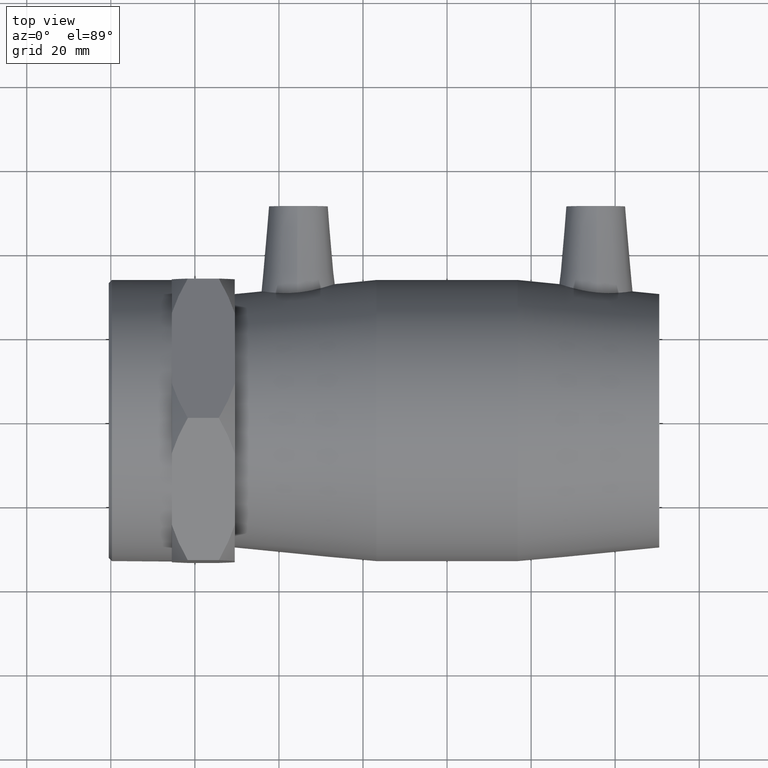
[diagram: clean part render]
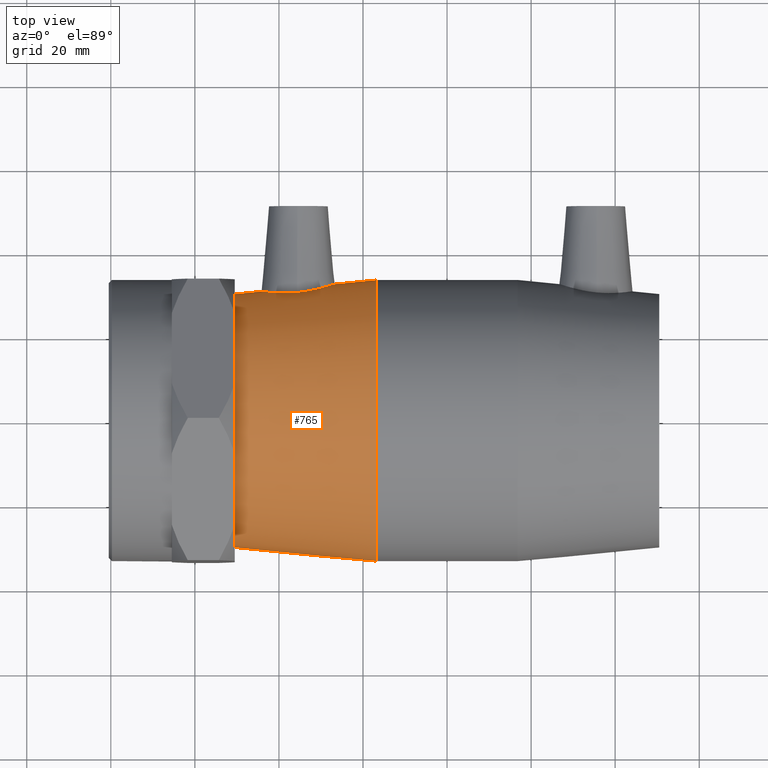
[diagram: same view with one face highlighted and labeled with its STEP entity id]
A machine part, top view. The second image highlights one B-rep face of the part: STEP entity #765.
In plain terms, the highlighted conical surface has half-angle 5.683 deg.
Its self-contained STEP definition (entity closure, byte-faithful):
#16=B_SPLINE_CURVE_WITH_KNOTS('',3,(#1375,#1376,#1377,#1378,#1379,#1380,
#1381,#1382,#1383,#1384,#1385,#1386,#1387,#1388,#1389,#1390,#1391,#1392,
#1393,#1394,#1395,#1396,#1397,#1398,#1399,#1400,#1401,#1402,#1403,#1404,
#1405,#1406,#1407,#1408),.UNSPECIFIED.,.T.,.F.,(4,2,2,2,2,2,2,2,2,2,2,2,
2,2,2,2,4),(0.,0.323120499511999,0.646240999023999,0.971518984508685,1.29679696999337,
1.62207495547806,1.94735294096274,2.27047344047474,2.59359393998674,2.93729543235928,
3.28099692473182,3.61782069974539,3.95464447475896,4.29146824977254,4.62829202478611,
4.97199351715865,5.31569500953119),.UNSPECIFIED.);
#151=FACE_BOUND('',#289,.T.);
#152=FACE_BOUND('',#290,.T.);
#206=FACE_OUTER_BOUND('',#288,.T.);
#288=EDGE_LOOP('',(#689));
#289=EDGE_LOOP('',(#690));
#290=EDGE_LOOP('',(#691));
#320=CIRCLE('',#832,30.15);
#332=CIRCLE('',#857,33.5);
#389=VERTEX_POINT('',#1305);
#401=VERTEX_POINT('',#1374);
#403=VERTEX_POINT('',#1412);
#484=EDGE_CURVE('',#389,#389,#320,.T.);
#496=EDGE_CURVE('',#401,#401,#16,.T.);
#498=EDGE_CURVE('',#403,#403,#332,.T.);
#689=ORIENTED_EDGE('',*,*,#498,.F.);
#690=ORIENTED_EDGE('',*,*,#496,.T.);
#691=ORIENTED_EDGE('',*,*,#484,.T.);
#711=CONICAL_SURFACE('',#866,31.825,5.68250835002633);
#765=ADVANCED_FACE('',(#206,#151,#152),#711,.T.);
#832=AXIS2_PLACEMENT_3D('',#1306,#1021,#1022);
#857=AXIS2_PLACEMENT_3D('',#1413,#1071,#1072);
#866=AXIS2_PLACEMENT_3D('',#1425,#1089,#1090);
#1021=DIRECTION('center_axis',(1.,0.,0.));
#1022=DIRECTION('ref_axis',(0.,0.,-1.));
#1071=DIRECTION('center_axis',(1.,0.,0.));
#1072=DIRECTION('ref_axis',(0.,0.,-1.));
#1089=DIRECTION('center_axis',(1.,0.,0.));
#1090=DIRECTION('ref_axis',(0.,1.,0.));
#1305=CARTESIAN_POINT('',(-50.5,30.15,0.));
#1306=CARTESIAN_POINT('Origin',(-50.5,0.,0.));
#1374=CARTESIAN_POINT('',(-35.6671886307007,30.3773904597837,8.79852904851299));
#1375=CARTESIAN_POINT('Ctrl Pts',(-35.6671886307007,30.3773904597837,8.79852904851299));
#1376=CARTESIAN_POINT('Ctrl Pts',(-36.7389640812576,30.2749537692277,8.76885921236681));
#1377=CARTESIAN_POINT('Ctrl Pts',(-37.879401717365,30.2304776062026,8.52339862615001));
#1378=CARTESIAN_POINT('Ctrl Pts',(-39.9668860140409,30.262944935348,7.5947666050826));
#1379=CARTESIAN_POINT('Ctrl Pts',(-40.9140788542704,30.3360778524557,6.91179446762884));
#1380=CARTESIAN_POINT('Ctrl Pts',(-42.406794360669,30.4982208570224,5.35717232340341));
#1381=CARTESIAN_POINT('Ctrl Pts',(-43.0528093111661,30.597943446048,4.37791662310557));
#1382=CARTESIAN_POINT('Ctrl Pts',(-43.9087505336002,30.742818161528,2.24157963899443));
#1383=CARTESIAN_POINT('Ctrl Pts',(-44.1185848733033,30.7849823962703,1.08425995161562));
#1384=CARTESIAN_POINT('Ctrl Pts',(-44.1185848733033,30.7849823962703,-1.08425995161562));
#1385=CARTESIAN_POINT('Ctrl Pts',(-43.9087505336002,30.742818161528,-2.24157963899443));
#1386=CARTESIAN_POINT('Ctrl Pts',(-43.0528093111661,30.597943446048,-4.37791662310557));
#1387=CARTESIAN_POINT('Ctrl Pts',(-42.406794360669,30.4982208570224,-5.35717232340341));
#1388=CARTESIAN_POINT('Ctrl Pts',(-40.9140788542704,30.3360778524557,-6.91179446762884));
#1389=CARTESIAN_POINT('Ctrl Pts',(-39.9668860140409,30.262944935348,-7.5947666050826));
#1390=CARTESIAN_POINT('Ctrl Pts',(-37.879401717365,30.2304776062026,-8.52339862615001));
#1391=CARTESIAN_POINT('Ctrl Pts',(-36.7389640812576,30.2749537692277,-8.76885921236681));
#1392=CARTESIAN_POINT('Ctrl Pts',(-34.5271469979322,30.4863518022889,-8.83008868950542));
#1393=CARTESIAN_POINT('Ctrl Pts',(-33.3200839499548,30.674268183196,-8.62298550936632));
#1394=CARTESIAN_POINT('Ctrl Pts',(-31.1104534237076,31.1373033650582,-7.73260105010648));
#1395=CARTESIAN_POINT('Ctrl Pts',(-30.1068287812536,31.4083006258617,-7.04980507731292));
#1396=CARTESIAN_POINT('Ctrl Pts',(-28.5383247413678,31.8778221183829,-5.47975321124123));
#1397=CARTESIAN_POINT('Ctrl Pts',(-27.8611902221542,32.1086415172993,-4.49200533932273));
#1398=CARTESIAN_POINT('Ctrl Pts',(-26.958168971404,32.4286967165414,-2.31382049434863));
#1399=CARTESIAN_POINT('Ctrl Pts',(-26.7327683113098,32.5149572125875,-1.12274591671191));
#1400=CARTESIAN_POINT('Ctrl Pts',(-26.7327683113098,32.5149572125875,1.12274591671191));
#1401=CARTESIAN_POINT('Ctrl Pts',(-26.958168971404,32.4286967165414,2.31382049434863));
#1402=CARTESIAN_POINT('Ctrl Pts',(-27.8611902221542,32.1086415172993,4.49200533932273));
#1403=CARTESIAN_POINT('Ctrl Pts',(-28.5383247413678,31.8778221183829,5.47975321124123));
#1404=CARTESIAN_POINT('Ctrl Pts',(-30.1068287812536,31.4083006258617,7.04980507731292));
#1405=CARTESIAN_POINT('Ctrl Pts',(-31.1104534237076,31.1373033650582,7.73260105010648));
#1406=CARTESIAN_POINT('Ctrl Pts',(-33.3200839499548,30.674268183196,8.62298550936632));
#1407=CARTESIAN_POINT('Ctrl Pts',(-34.5271469979322,30.4863518022889,8.83008868950542));
#1408=CARTESIAN_POINT('Ctrl Pts',(-35.6671886307007,30.3773904597837,8.79852904851299));
#1412=CARTESIAN_POINT('',(-16.8333333333333,33.5,0.));
#1413=CARTESIAN_POINT('Origin',(-16.8333333333333,0.,0.));
#1425=CARTESIAN_POINT('Origin',(-33.6666666666667,0.,0.));